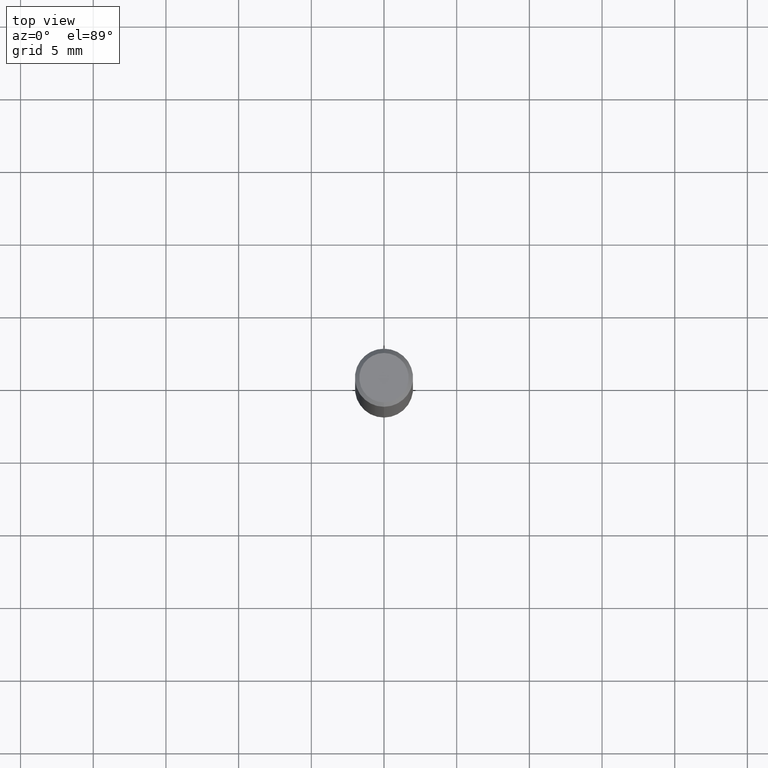
[diagram: clean part render]
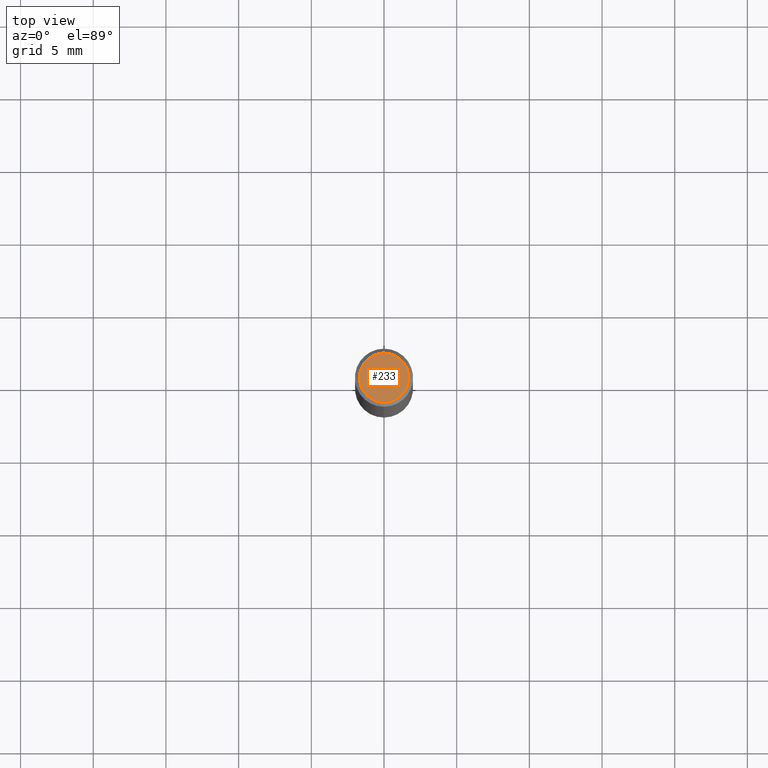
[diagram: same view with one face highlighted and labeled with its STEP entity id]
A machine part, top view. The second image highlights one B-rep face of the part: STEP entity #233.
In plain terms, the highlighted planar face has unit normal (-0, 0, 1).
Its self-contained STEP definition (entity closure, byte-faithful):
#147=VERTEX_POINT('',#384);
#151=EDGE_CURVE('',#147,#275,#388,.T.);
#193=EDGE_CURVE('',#275,#147,#437,.T.);
#233=ADVANCED_FACE('',(#480),#481,.T.);
#275=VERTEX_POINT('',#528);
#384=CARTESIAN_POINT('',(2.08183080149804E-016,-1.7,0.00999999999999801));
#388=CIRCLE('',#648,1.7);
#437=CIRCLE('',#711,1.7);
#480=FACE_OUTER_BOUND('',#767,.T.);
#481=PLANE('',#768);
#528=CARTESIAN_POINT('',(0.0,1.7,0.00999999999999801));
#648=AXIS2_PLACEMENT_3D('',#965,#966,#967);
#711=AXIS2_PLACEMENT_3D('',#1043,#1044,#1045);
#767=EDGE_LOOP('',(#1087,#1088));
#768=AXIS2_PLACEMENT_3D('',#1089,#1090,#1091);
#965=CARTESIAN_POINT('',(0.0,0.0,0.00999999999999801));
#966=DIRECTION('',(0.0,0.0,-1.0));
#967=DIRECTION('',(0.0,1.0,0.0));
#1043=CARTESIAN_POINT('',(0.0,0.0,0.00999999999999801));
#1044=DIRECTION('',(0.0,0.0,-1.0));
#1045=DIRECTION('',(0.0,1.0,0.0));
#1087=ORIENTED_EDGE('',*,*,#193,.F.);
#1088=ORIENTED_EDGE('',*,*,#151,.F.);
#1089=CARTESIAN_POINT('',(0.0,0.85,0.00999999999999801));
#1090=DIRECTION('',(-0.0,0.0,1.0));
#1091=DIRECTION('',(0.0,-1.0,0.0));